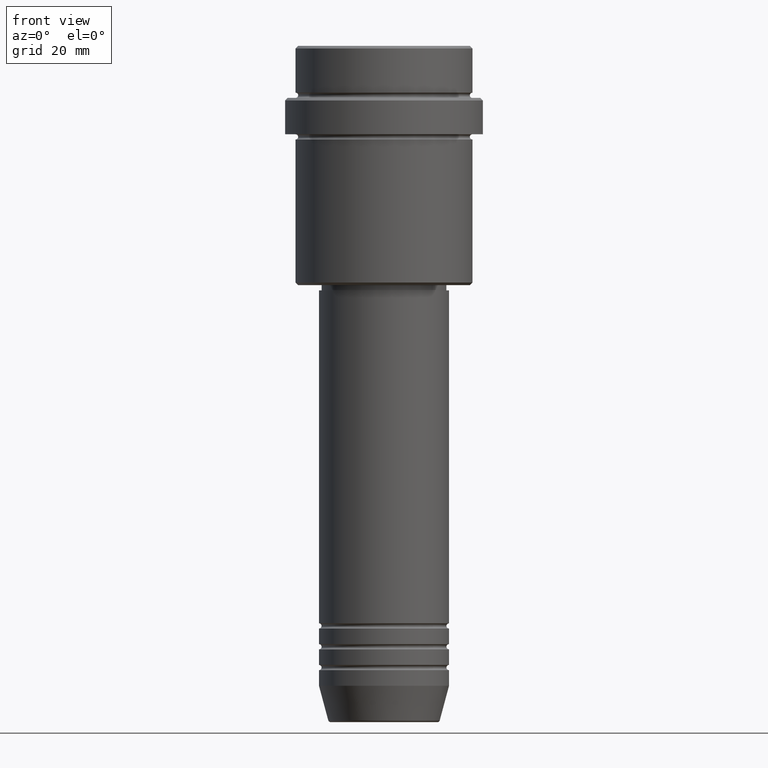
[diagram: clean part render]
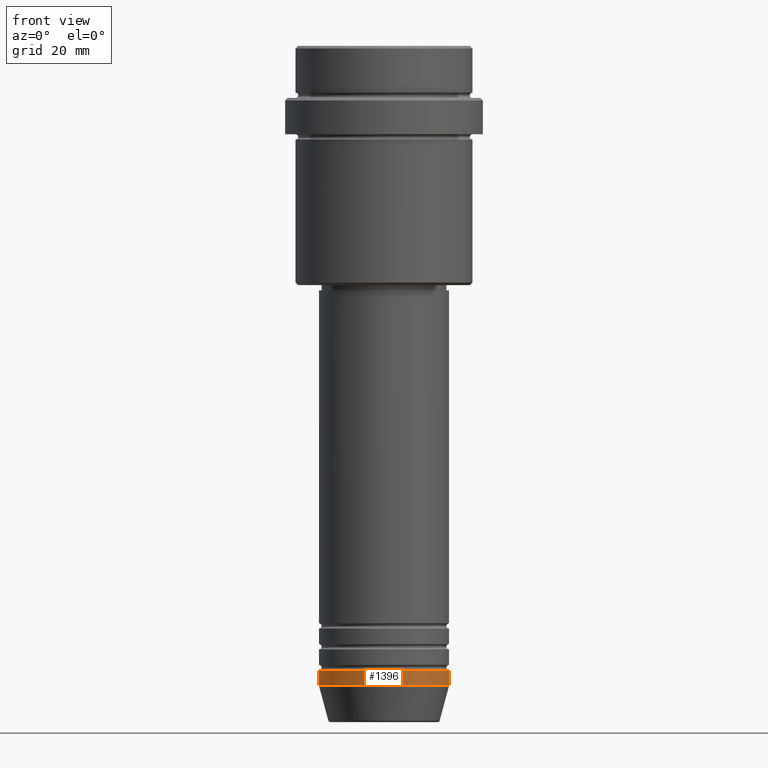
[diagram: same view with one face highlighted and labeled with its STEP entity id]
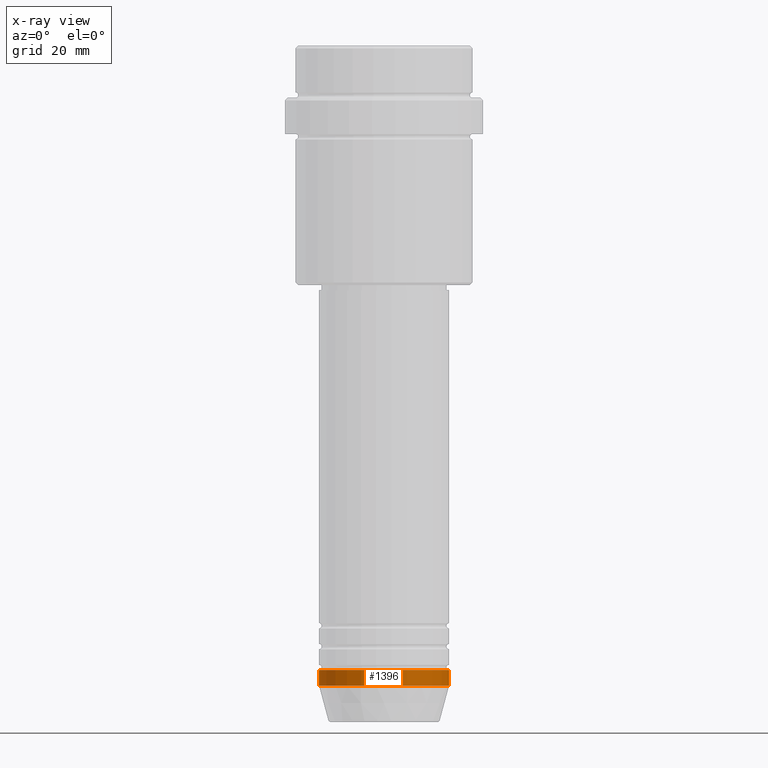
[diagram: x-ray of the same camera — body ghosted, the highlighted face saturated]
A machine part, front view. The second image highlights one B-rep face of the part: STEP entity #1396.
The next image is the same camera in x-ray: the body ghosted, the highlighted face saturated — about 0% of this face is hidden behind the body in this view.
In plain terms, the highlighted cylindrical surface (partial cylindrical patch) has radius 12.5 mm, axis along (-0, -0, 1).
Its self-contained STEP definition (entity closure, byte-faithful):
#24 = VERTEX_POINT ( 'NONE', #399 ) ;
#34 = LINE ( 'NONE', #129, #936 ) ;
#118 = CARTESIAN_POINT ( 'NONE',  ( 12.50000000000000000, 0.000000000000000000, -120.0000000000000000 ) ) ;
#129 = CARTESIAN_POINT ( 'NONE',  ( -12.50000000000000000, 1.530808498934191521E-15, 0.000000000000000000 ) ) ;
#204 = AXIS2_PLACEMENT_3D ( 'NONE', #1378, #403, #721 ) ;
#278 = DIRECTION ( 'NONE',  ( 1.000000000000000000, 0.000000000000000000, 0.000000000000000000 ) ) ;
#294 = ORIENTED_EDGE ( 'NONE', *, *, #1346, .T. ) ;
#306 = VERTEX_POINT ( 'NONE', #319 ) ;
#319 = CARTESIAN_POINT ( 'NONE',  ( -12.50000000000000000, 1.530808498934191521E-15, -123.0000000000000000 ) ) ;
#373 = CIRCLE ( 'NONE', #542, 12.50000000000000000 ) ;
#399 = CARTESIAN_POINT ( 'NONE',  ( -12.50000000000000000, 1.530808498934191521E-15, -120.0000000000000000 ) ) ;
#403 = DIRECTION ( 'NONE',  ( -0.000000000000000000, -0.000000000000000000, 1.000000000000000000 ) ) ;
#423 = VERTEX_POINT ( 'NONE', #1140 ) ;
#463 = DIRECTION ( 'NONE',  ( -0.000000000000000000, -0.000000000000000000, 1.000000000000000000 ) ) ;
#542 = AXIS2_PLACEMENT_3D ( 'NONE', #1123, #463, #585 ) ;
#545 = CIRCLE ( 'NONE', #204, 12.50000000000000000 ) ;
#585 = DIRECTION ( 'NONE',  ( 1.000000000000000000, 0.000000000000000000, 0.000000000000000000 ) ) ;
#651 = EDGE_LOOP ( 'NONE', ( #1092, #665, #294, #749 ) ) ;
#665 = ORIENTED_EDGE ( 'NONE', *, *, #871, .T. ) ;
#691 = FACE_OUTER_BOUND ( 'NONE', #651, .T. ) ;
#721 = DIRECTION ( 'NONE',  ( 1.000000000000000000, 0.000000000000000000, 0.000000000000000000 ) ) ;
#749 = ORIENTED_EDGE ( 'NONE', *, *, #1029, .F. ) ;
#871 = EDGE_CURVE ( 'NONE', #306, #423, #373, .T. ) ;
#928 = CYLINDRICAL_SURFACE ( 'NONE', #1065, 12.50000000000000000 ) ;
#936 = VECTOR ( 'NONE', #1351, 1000.000000000000000 ) ;
#965 = LINE ( 'NONE', #1402, #1139 ) ;
#1029 = EDGE_CURVE ( 'NONE', #24, #1275, #545, .T. ) ;
#1065 = AXIS2_PLACEMENT_3D ( 'NONE', #1360, #1126, #278 ) ;
#1092 = ORIENTED_EDGE ( 'NONE', *, *, #1100, .F. ) ;
#1100 = EDGE_CURVE ( 'NONE', #306, #24, #34, .T. ) ;
#1123 = CARTESIAN_POINT ( 'NONE',  ( 0.000000000000000000, 0.000000000000000000, -123.0000000000000000 ) ) ;
#1126 = DIRECTION ( 'NONE',  ( -0.000000000000000000, -0.000000000000000000, 1.000000000000000000 ) ) ;
#1139 = VECTOR ( 'NONE', #1288, 1000.000000000000000 ) ;
#1140 = CARTESIAN_POINT ( 'NONE',  ( 12.50000000000000000, 0.000000000000000000, -123.0000000000000000 ) ) ;
#1275 = VERTEX_POINT ( 'NONE', #118 ) ;
#1288 = DIRECTION ( 'NONE',  ( -0.000000000000000000, -0.000000000000000000, 1.000000000000000000 ) ) ;
#1346 = EDGE_CURVE ( 'NONE', #423, #1275, #965, .T. ) ;
#1351 = DIRECTION ( 'NONE',  ( -0.000000000000000000, -0.000000000000000000, 1.000000000000000000 ) ) ;
#1360 = CARTESIAN_POINT ( 'NONE',  ( 0.000000000000000000, 0.000000000000000000, 0.000000000000000000 ) ) ;
#1378 = CARTESIAN_POINT ( 'NONE',  ( 0.000000000000000000, 0.000000000000000000, -120.0000000000000000 ) ) ;
#1396 = ADVANCED_FACE ( 'NONE', ( #691 ), #928, .T. ) ;
#1402 = CARTESIAN_POINT ( 'NONE',  ( 12.50000000000000000, 0.000000000000000000, 0.000000000000000000 ) ) ;